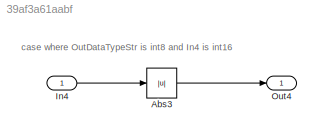
MODEL slx_39af3a61aabf
KIND model
CONFIG AbsTol = auto
CONFIG EnableMultiTasking = on
CONFIG FixedStep = 0.200000
CONFIG MaxStep = auto
CONFIG MinStep = auto
CONFIG RelTol = 1e-3
CONFIG SampleTimeConstraint = Unconstrained
CONFIG Solver = ode3
CONFIG SolverName = ode3
CONFIG StartTime = 0.0
CONFIG StopTime = 10.0
BLOCK [Abs] Abs3
  OutDataTypeStr = int8
  SaturateOnIntegerOverflow = off
BLOCK [Inport] In4
  IconDisplay = Port number
  OutDataTypeStr = int16
BLOCK [Outport] Out4
  IconDisplay = Port number
ANNOTATION (root): case where OutDataTypeStr is int8 and In4 is int16
LINE Abs3:1 -> Out4:1
LINE In4:1 -> Abs3:1
